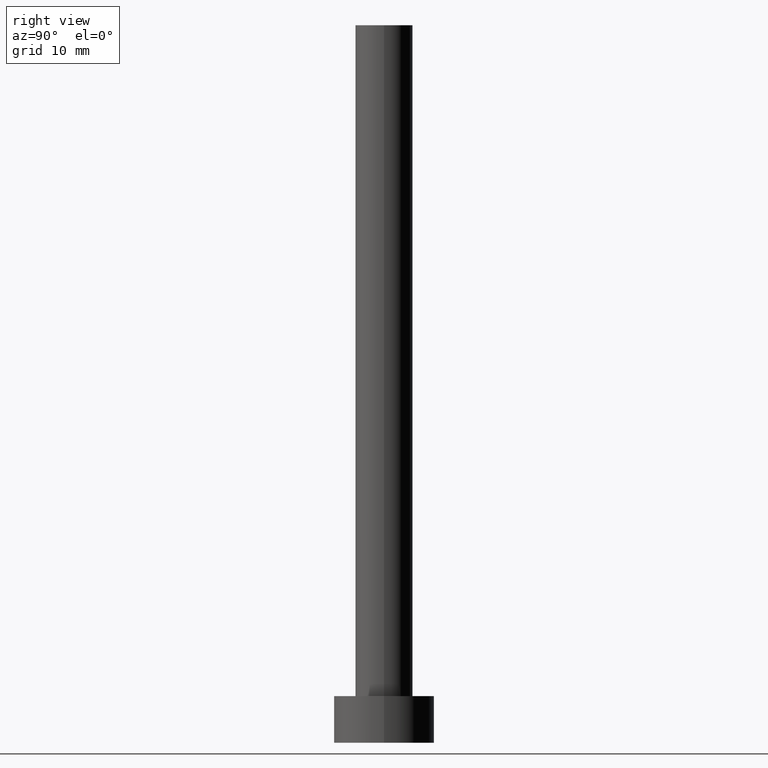
[diagram: clean part render]
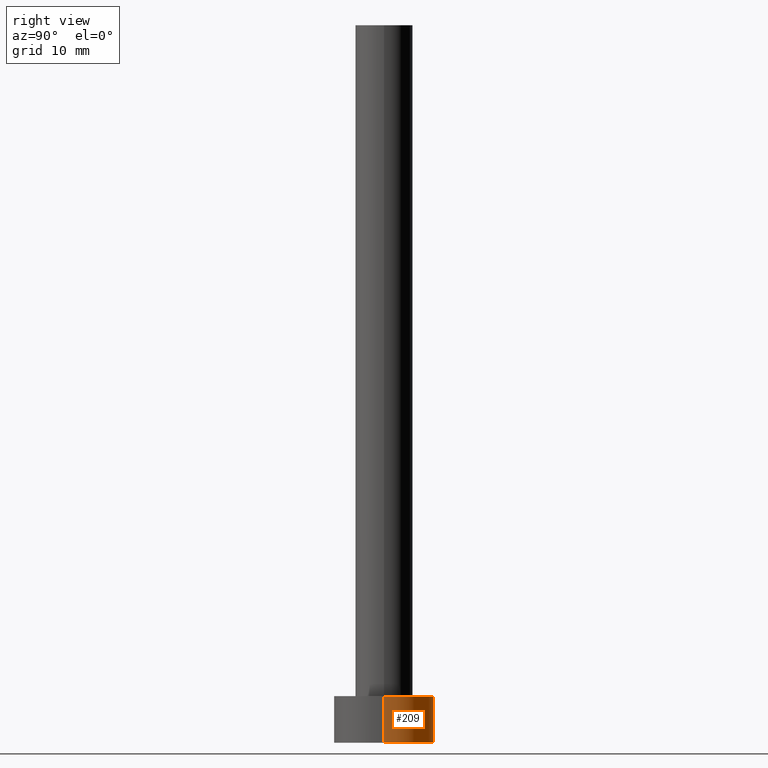
[diagram: same view with one face highlighted and labeled with its STEP entity id]
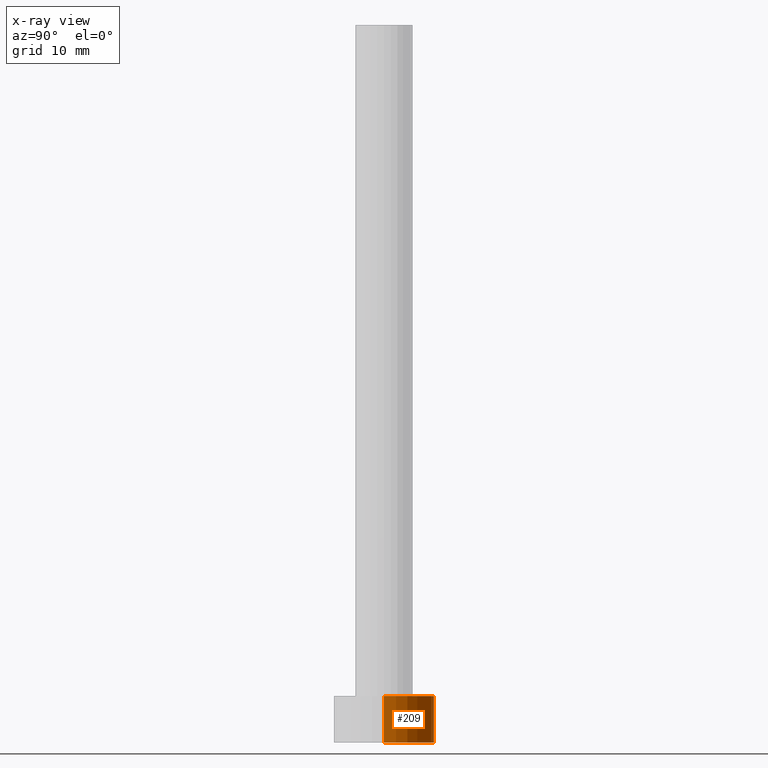
[diagram: x-ray of the same camera — body ghosted, the highlighted face saturated]
A machine part, right view. The second image highlights one B-rep face of the part: STEP entity #209.
The next image is the same camera in x-ray: the body ghosted, the highlighted face saturated — about 0% of this face is hidden behind the body in this view.
In plain terms, the highlighted cylindrical surface (partial cylindrical patch) has radius 7 mm, axis along (-0, -0, -1).
Its self-contained STEP definition (entity closure, byte-faithful):
#30 = DIRECTION ( 'NONE',  ( 0.000000000000000000, 0.000000000000000000, 1.000000000000000000 ) ) ;
#31 = CIRCLE ( 'NONE', #243, 7.000000000000000000 ) ;
#37 = CYLINDRICAL_SURFACE ( 'NONE', #95, 7.000000000000000000 ) ;
#38 = LINE ( 'NONE', #102, #92 ) ;
#57 = DIRECTION ( 'NONE',  ( -1.000000000000000000, 0.000000000000000000, 0.000000000000000000 ) ) ;
#63 = AXIS2_PLACEMENT_3D ( 'NONE', #156, #30, #133 ) ;
#67 = EDGE_LOOP ( 'NONE', ( #215, #131, #129, #108 ) ) ;
#76 = CARTESIAN_POINT ( 'NONE',  ( -7.000000000000000000, 0.000000000000000000, 6.500000000000000000 ) ) ;
#83 = CARTESIAN_POINT ( 'NONE',  ( 7.000000000000000000, 8.572527594031471218E-16, 6.500000000000000000 ) ) ;
#85 = EDGE_CURVE ( 'NONE', #178, #154, #31, .T. ) ;
#90 = EDGE_CURVE ( 'NONE', #154, #242, #38, .T. ) ;
#92 = VECTOR ( 'NONE', #227, 1000.000000000000000 ) ;
#95 = AXIS2_PLACEMENT_3D ( 'NONE', #142, #113, #57 ) ;
#102 = CARTESIAN_POINT ( 'NONE',  ( -7.000000000000000000, 0.000000000000000000, 6.500000000000000000 ) ) ;
#108 = ORIENTED_EDGE ( 'NONE', *, *, #90, .F. ) ;
#113 = DIRECTION ( 'NONE',  ( -0.000000000000000000, -0.000000000000000000, -1.000000000000000000 ) ) ;
#120 = EDGE_CURVE ( 'NONE', #230, #242, #192, .T. ) ;
#129 = ORIENTED_EDGE ( 'NONE', *, *, #120, .T. ) ;
#131 = ORIENTED_EDGE ( 'NONE', *, *, #235, .T. ) ;
#133 = DIRECTION ( 'NONE',  ( 1.000000000000000000, 0.000000000000000000, 0.000000000000000000 ) ) ;
#140 = LINE ( 'NONE', #180, #194 ) ;
#142 = CARTESIAN_POINT ( 'NONE',  ( 0.000000000000000000, 0.000000000000000000, 6.500000000000000000 ) ) ;
#144 = CARTESIAN_POINT ( 'NONE',  ( 7.000000000000000000, 8.572527594031471218E-16, 0.000000000000000000 ) ) ;
#147 = FACE_OUTER_BOUND ( 'NONE', #67, .T. ) ;
#149 = DIRECTION ( 'NONE',  ( 0.000000000000000000, 0.000000000000000000, 1.000000000000000000 ) ) ;
#152 = DIRECTION ( 'NONE',  ( 1.000000000000000000, 0.000000000000000000, 0.000000000000000000 ) ) ;
#154 = VERTEX_POINT ( 'NONE', #76 ) ;
#156 = CARTESIAN_POINT ( 'NONE',  ( 0.000000000000000000, 0.000000000000000000, 0.000000000000000000 ) ) ;
#178 = VERTEX_POINT ( 'NONE', #83 ) ;
#180 = CARTESIAN_POINT ( 'NONE',  ( 7.000000000000000000, 8.572527594031471218E-16, 6.500000000000000000 ) ) ;
#186 = DIRECTION ( 'NONE',  ( -0.000000000000000000, -0.000000000000000000, -1.000000000000000000 ) ) ;
#192 = CIRCLE ( 'NONE', #63, 7.000000000000000000 ) ;
#194 = VECTOR ( 'NONE', #186, 1000.000000000000000 ) ;
#206 = CARTESIAN_POINT ( 'NONE',  ( -7.000000000000000000, 0.000000000000000000, 0.000000000000000000 ) ) ;
#207 = CARTESIAN_POINT ( 'NONE',  ( 0.000000000000000000, 0.000000000000000000, 6.500000000000000000 ) ) ;
#209 = ADVANCED_FACE ( 'NONE', ( #147 ), #37, .T. ) ;
#215 = ORIENTED_EDGE ( 'NONE', *, *, #85, .F. ) ;
#227 = DIRECTION ( 'NONE',  ( -0.000000000000000000, -0.000000000000000000, -1.000000000000000000 ) ) ;
#230 = VERTEX_POINT ( 'NONE', #144 ) ;
#235 = EDGE_CURVE ( 'NONE', #178, #230, #140, .T. ) ;
#242 = VERTEX_POINT ( 'NONE', #206 ) ;
#243 = AXIS2_PLACEMENT_3D ( 'NONE', #207, #149, #152 ) ;